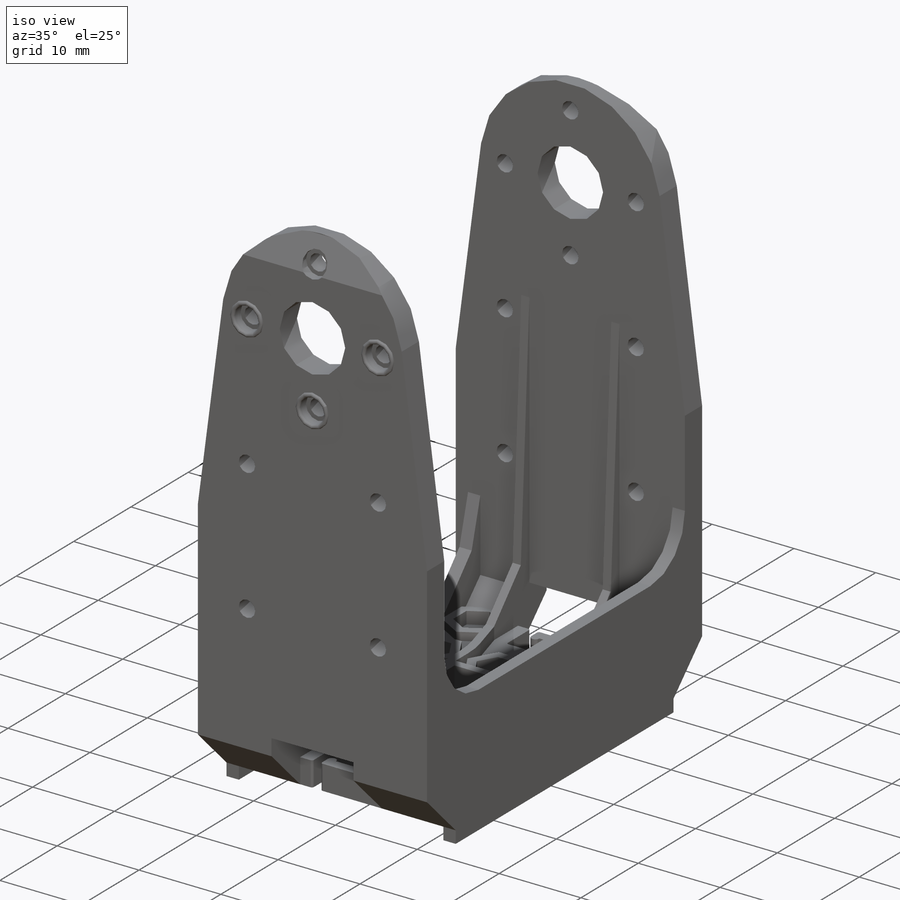
[diagram: iso view]
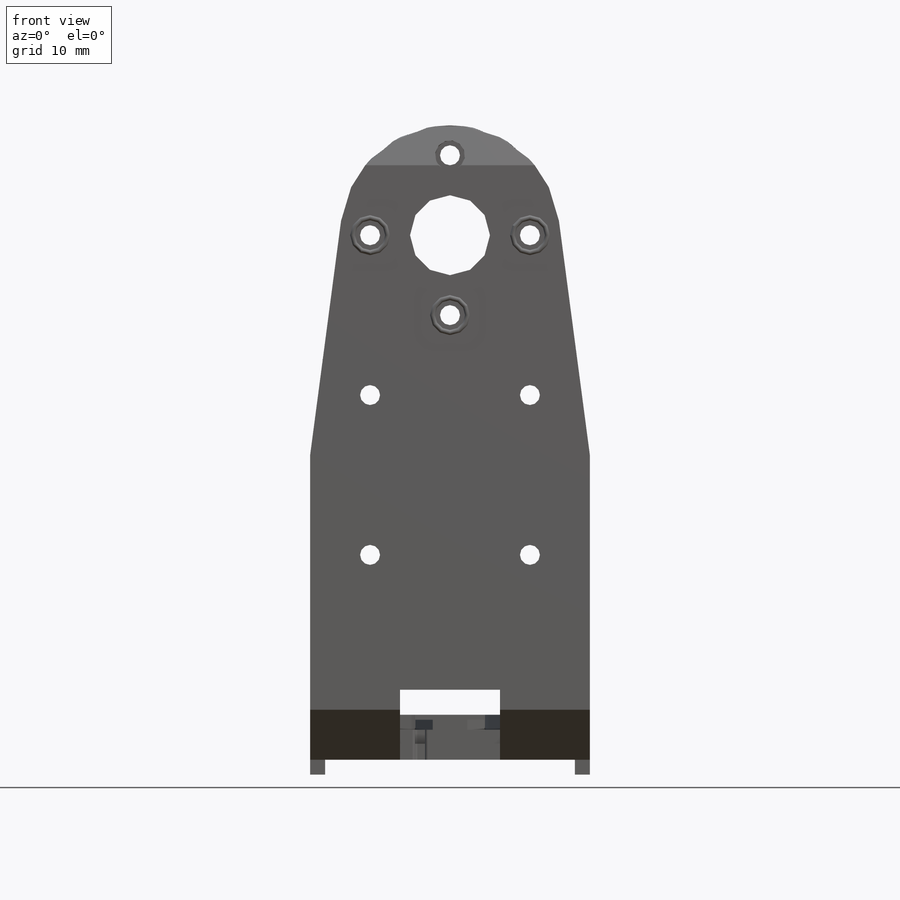
[diagram: front view]
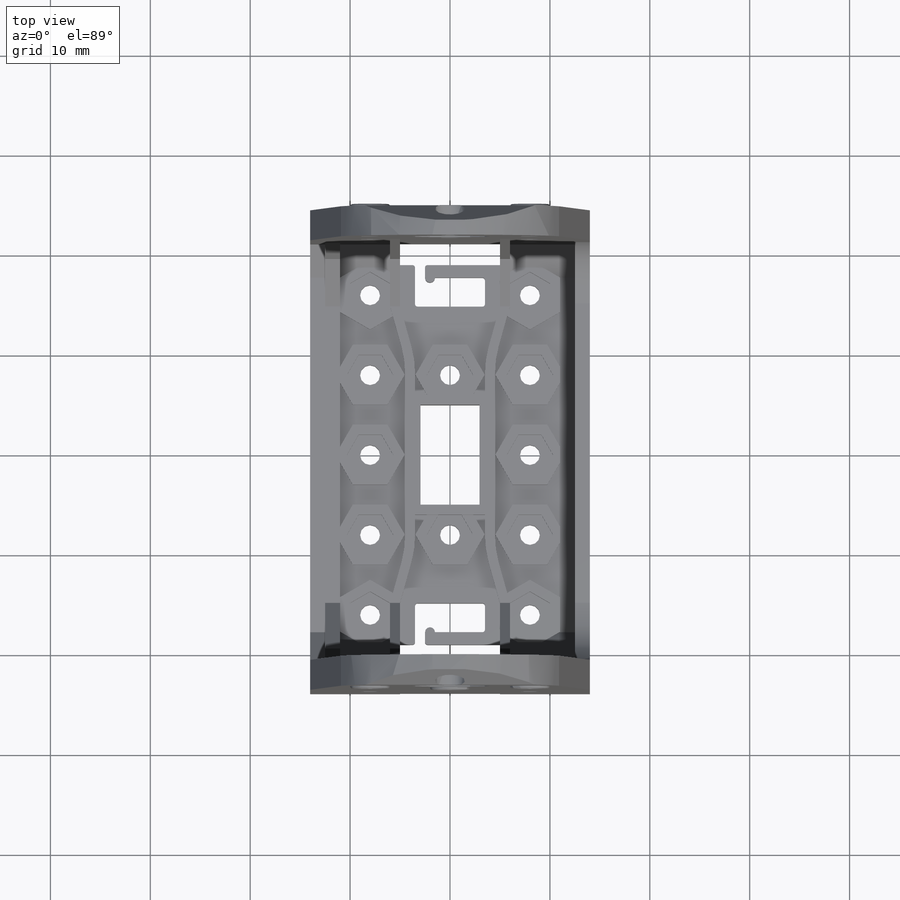
[diagram: top view]
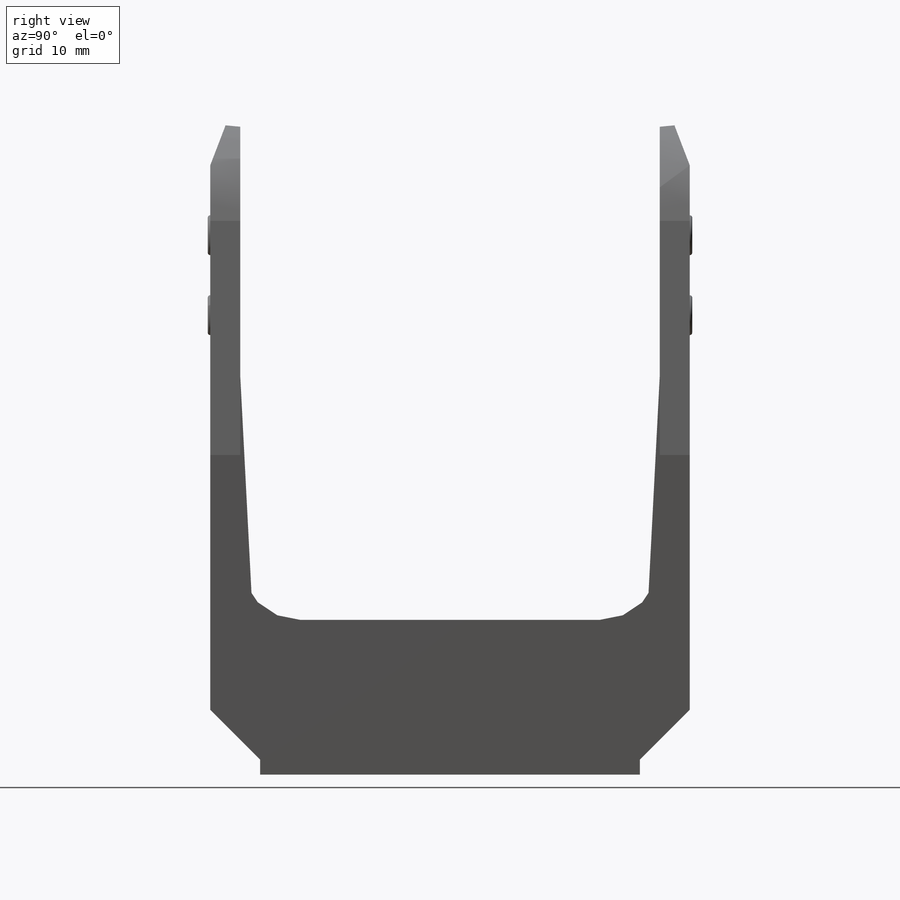
[diagram: right view]
SOLIDWORKS PART (.sldprt)
format: sldprt  version: not decoded by parser v0  size: 1,472,000 bytes
history: native  units: mm
features: sketch x16, extrude x8, cut_extrude x8, mirror x3, plane x2, material x1, move_body x1, fillet x1 + 1 further entry (+14 scaffold rows collapsed; 4 parser-record rows omitted)
feature tree (59):
  scaffold x14  (default folders/planes/origin — collapsed)
  material  "PVC Rigid"
  sketch  "Sketch1"  dims[c1.D1=~1.391594mm c1.D2=~0.982792mm c1.D5=2.0mm c1.D8=2.0mm c1.D9=~1.16721mm c2.D1=15.0mm c2.D2=75.5mm c2.D3=28.0mm c2.D4=14.0mm c2.D5=22.0mm c2.D6=1.75mm c3.D1=8.0mm c3.D2=8.0mm c3.D6=8.0mm c3.D7=8.0mm c3.D5=16.0mm c3.D8=16.0mm c3.D9=32.0mm c3.D10=1.5mm]
  extrude  "Extrude1"  Depth=24mm
  sketch  "Sketch2"  dims[D1=3.0mm]
  cut_extrude  "Cut-Extrude2"  Depth=21mm
  sketch  "Sketch4"  dims[D1=5.0mm D2=6.5mm]
  cut_extrude  "Cut-Extrude3"  Depth=21mm
  sketch  "Sketch5"  dims[c1.D1=~3.707942mm c1.D2=~3.707942mm c1.D3=~3.707942mm c2.D2=~3.451896mm c2.D1=~4.875076mm c3.D1=~0.078117deg c4.D1=3.0mm]
  extrude  "Extrude3"  Depth=14mm
  plane  "Plane1"  Offset=0mm
  sketch  "Sketch6"  dims[D1=11.0mm D2=6.0mm D3=6.0mm]
  extrude  "Extrude4"  Depth=1.5mm
  sketch  "Sketch7"  dims[D1=3.0mm D2=3.0mm]
  cut_extrude  "Cut-Extrude4"  [1 undecoded]
  "FG"
  move_body  "Body-Move/Copy2"
  parser-record x4  (decoder bookkeeping rows leaked as tree rows — omitted from the tree; the rows remain in map.json)
  sketch  "Sketch8"  dims[D1=8.5mm D2=4.0mm]
  cut_extrude  "Cut-Extrude5"  Depth=5mm
  sketch  "Sketch9"
  cut_extrude  "Cut-Extrude7"  [1 undecoded]
  sketch  "Sketch10"  dims[c1.D3=~0.670856mm c1.D4=0.25mm c1.D5=0.25mm c1.D6=0.25mm c2.D3=~0.413087mm c2.D1=1.0mm c2.D2=1.25mm c3.D3=0.5mm c3.D7=6.5mm c4.D7=~0.043409deg c5.D7=1.0mm c5.D3=0.5mm]
  extrude  "Extrude5"  Depth=3mm
  plane  "Plane2"  Offset=0mm
  sketch  "Sketch11"  dims[D1=40.0mm]
  extrude  "Extrude6"  Depth=1mm
  mirror  "Mirror3"
  sketch  "Sketch12"  dims[D1=5.5mm D2=5.5mm]
  extrude  "Extrude7"  Depth=1.5mm
  sketch  "Sketch14"
  extrude  "Extrude8"  Depth=8mm
  mirror  "Mirror4"
  sketch  "Sketch13"
  cut_extrude  "Cut-Extrude8"  Depth=1.5mm
  sketch  "Sketch15"  dims[D1=~2.706302mm]
  extrude  "Extrude9"  Depth=0.25mm
  fillet  "Fillet1"  Radius=0.25mm
  sketch  "Sketch16"
  cut_extrude  "Cut-Extrude9"  Depth=1mm
  mirror  "Mirror5"
  sketch  "Sketch17"  dims[D1=4.0mm D2=1.5mm]
  cut_extrude  "Cut-Extrude10"  [1 undecoded]
decode coverage: 26 of 37 modeling features carry decoded parameters; 1 rows unclassified (native names shown)
note: ~ marks probable driven/reference dimensions
note: 3 parameter values undecoded
summary: no parameter record found for 3 features
note: suppression state not decoded; provenance and decode notes live in map.json
